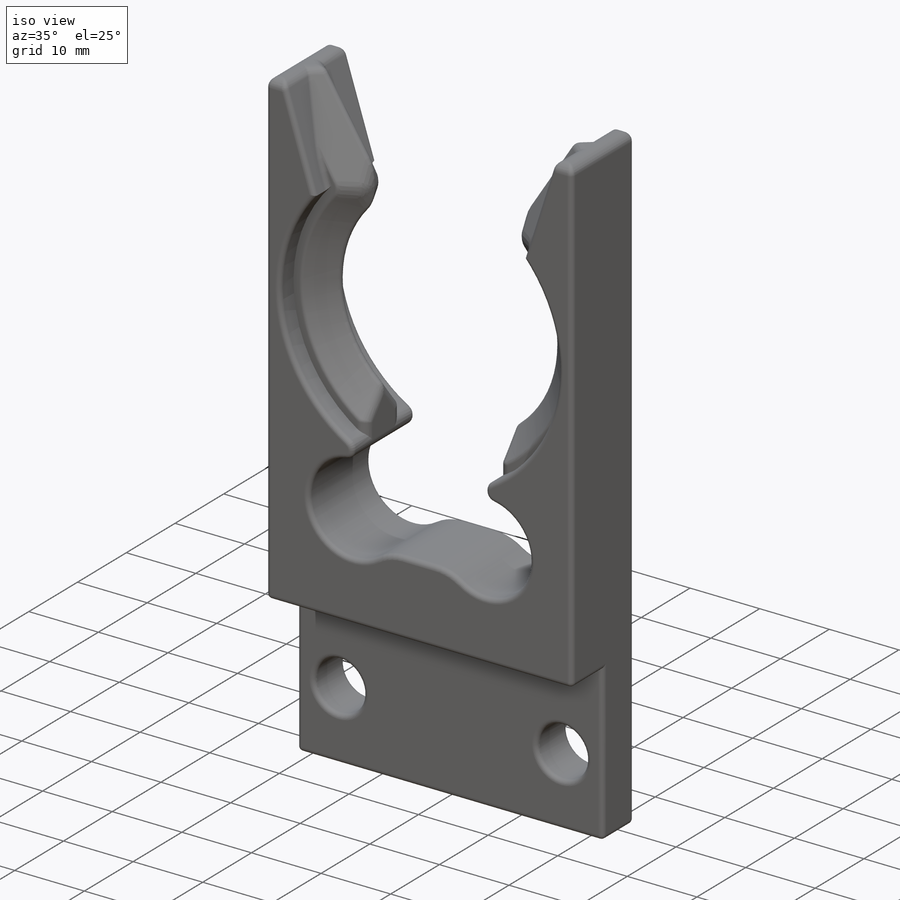
[diagram: iso view]
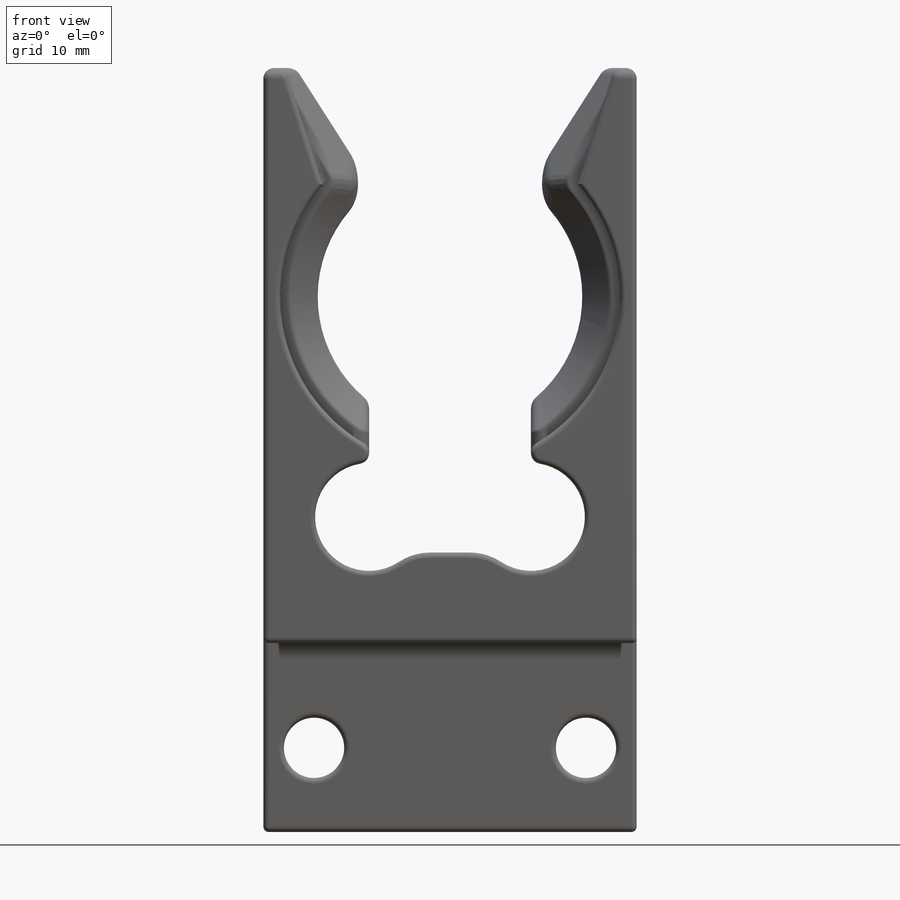
[diagram: front view]
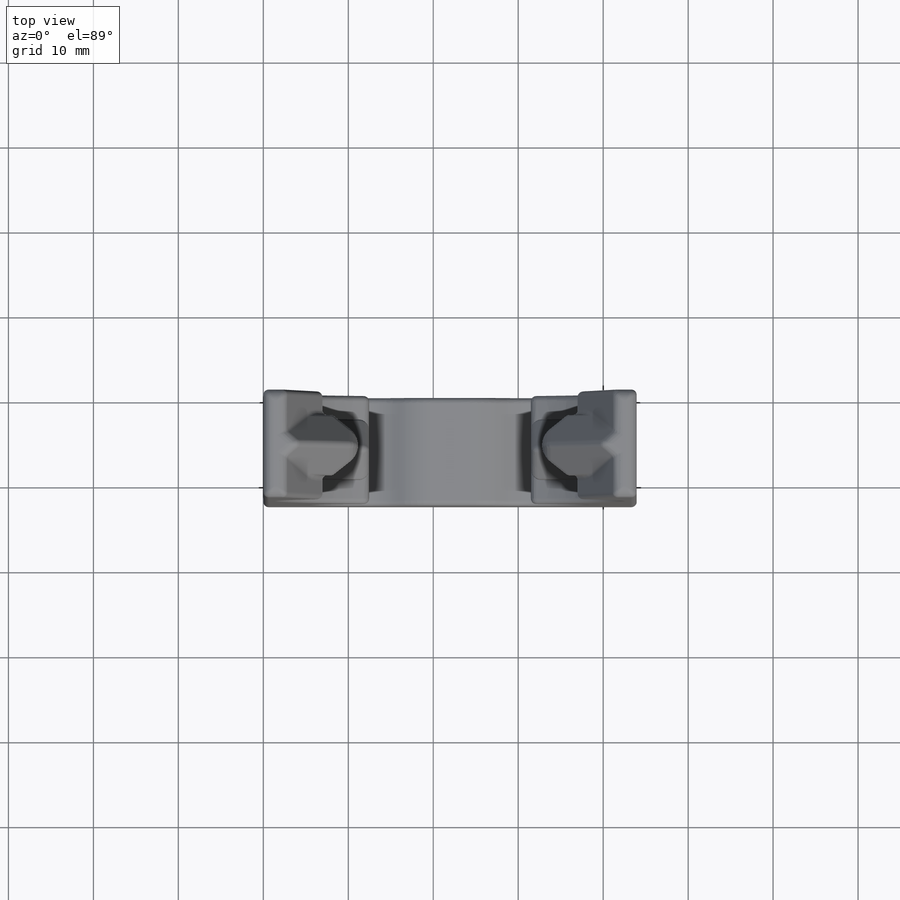
[diagram: top view]
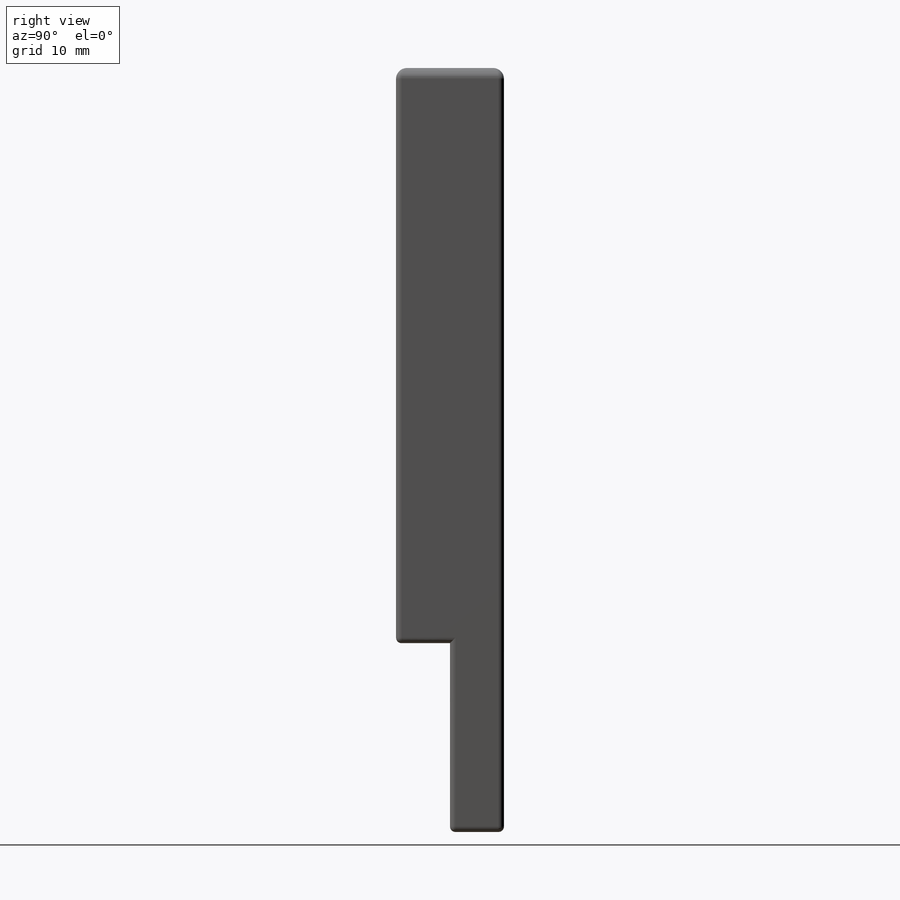
[diagram: right view]
SOLIDWORKS PART (.sldprt)
format: sldprt  version: not decoded by parser v0  size: 1,090,048 bytes
history: native  units: mm
features: sketch x8, fillet x8, cut_extrude x7, chamfer x2, material x1, extrude x1 (+15 scaffold rows collapsed)
feature tree (42):
  scaffold x15  (default folders/planes/origin — collapsed)
  material  "Material <not specified>"
  sketch  "Sketch1"  dims[D1=89.916mm D2=43.942mm]
  extrude  "Boss-Extrude1"  Depth=12.7mm
  sketch  "Sketch2"  dims[D1=22.225mm]
  cut_extrude  "Cut-Extrude1"  Depth=6.35mm
  sketch  "Sketch11"  dims[D1=~9.414795mm D2=32.004mm D3=9.906mm]
  cut_extrude  "Cut-Extrude6"  [1 undecoded]
  sketch  "Sketch4"  dims[c1.D1=31.115mm c1.D7=12.7mm c1.D2=3.81mm c1.D3=3.81mm c1.D4=15.748mm c1.D5=26.924mm c1.D6=~17.929857mm c2.D6=90.0deg c2.D7=67.691mm c3.D6=~17.929857mm c4.D6=90.0deg c5.D6=19.05mm c5.D7=~11.449952mm c5.D8=52.832mm c5.D9=57.023mm c5.D10=19.05mm c5.D11=9.525mm c5.D2=~21.64588mm]
  cut_extrude  "Cut-Extrude2"  [1 undecoded]
  sketch  "Sketch5"  dims[c1.D1=40.005mm c1.D2=1.27mm c1.D3=1.27mm c1.D4=13.716mm c1.D5=~30.043218mm c2.D2=2.54mm c2.D3=2.54mm]
  cut_extrude  "Cut-Extrude3"  Depth=2.794mm
  sketch  "Sketch6"  dims[D1=13.716mm D2=2.54mm]
  cut_extrude  "Cut-Extrude4"  Depth=2.794mm
  chamfer  "Chamfer1"  Distance=3.302mm Angle=45deg
  sketch  "Sketch9"  dims[D1=1.27mm D2=1.27mm]
  cut_extrude  "Cut-Extrude5"  [1 undecoded]
  chamfer  "Chamfer2"  Distance=3.302mm Angle=45deg
  fillet  "Fillet2"  Radius=2.54mm
  fillet  "Fillet3"  Radius=1.27mm
  fillet  "Fillet4"  Radius=6.731mm
  fillet  "Fillet5"  Radius=2.54mm
  fillet  "Fillet6"  Radius=1.27mm
  fillet  "Fillet7"  Radius=0.635mm
  fillet  "Fillet9"  Radius=0.635mm
  fillet  "Fillet10"  Radius=0.635mm
  sketch  "Sketch12"  dims[D1=21.59mm D2=6.985mm]
  cut_extrude  "Cut-Extrude7"  Depth=0.762mm
decode coverage: 23 of 26 modeling features carry decoded parameters
note: ~ marks probable driven/reference dimensions
note: 3 parameter values undecoded
summary: no parameter record found for 3 features
note: suppression state not decoded; provenance and decode notes live in map.json
